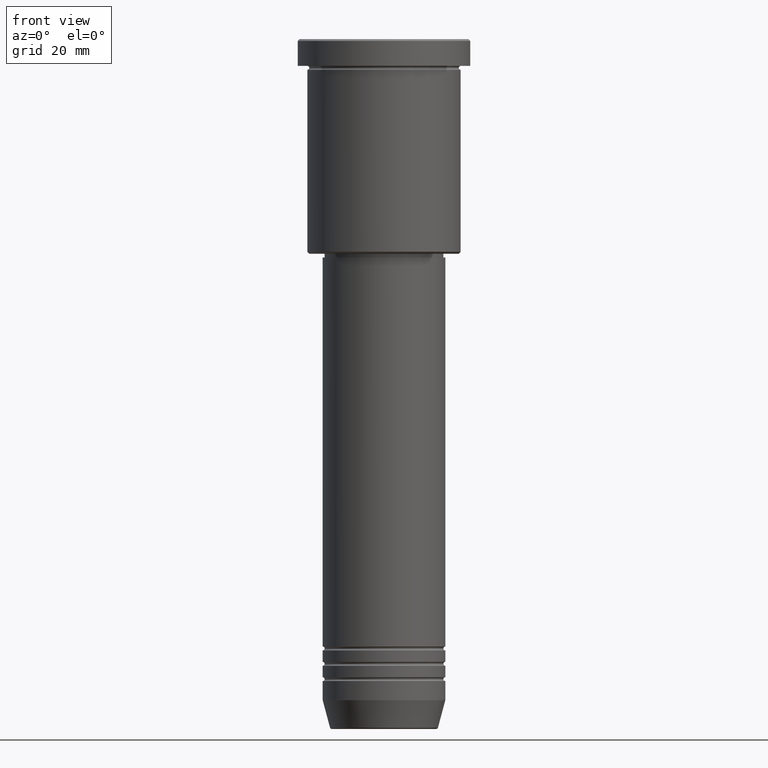
[diagram: clean part render]
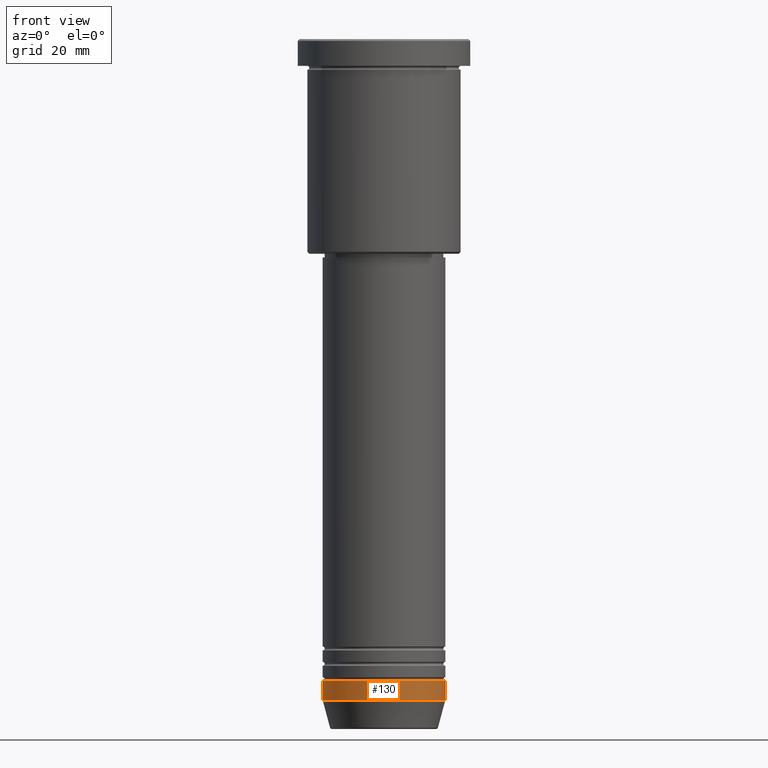
[diagram: same view with one face highlighted and labeled with its STEP entity id]
A machine part, front view. The second image highlights one B-rep face of the part: STEP entity #130.
In plain terms, the highlighted cylindrical surface (partial cylindrical patch) has radius 16 mm, axis along (-0, -0, 1).
Its self-contained STEP definition (entity closure, byte-faithful):
#4 = EDGE_CURVE ( 'NONE', #770, #1050, #547, .T. ) ;
#31 = EDGE_CURVE ( 'NONE', #1050, #184, #910, .T. ) ;
#70 = CARTESIAN_POINT ( 'NONE',  ( 16.00000000000000000, 0.000000000000000000, -172.5000000000000284 ) ) ;
#88 = EDGE_LOOP ( 'NONE', ( #476, #1158, #291, #843 ) ) ;
#130 = ADVANCED_FACE ( 'NONE', ( #567 ), #638, .T. ) ;
#184 = VERTEX_POINT ( 'NONE', #773 ) ;
#187 = CARTESIAN_POINT ( 'NONE',  ( 0.000000000000000000, 0.000000000000000000, -172.5000000000000284 ) ) ;
#198 = EDGE_CURVE ( 'NONE', #770, #546, #1152, .T. ) ;
#201 = CARTESIAN_POINT ( 'NONE',  ( 0.000000000000000000, 0.000000000000000000, -167.5000000000000000 ) ) ;
#215 = VECTOR ( 'NONE', #972, 1000.000000000000000 ) ;
#262 = DIRECTION ( 'NONE',  ( 1.000000000000000000, 0.000000000000000000, 0.000000000000000000 ) ) ;
#291 = ORIENTED_EDGE ( 'NONE', *, *, #31, .T. ) ;
#409 = DIRECTION ( 'NONE',  ( -0.000000000000000000, -0.000000000000000000, 1.000000000000000000 ) ) ;
#454 = VECTOR ( 'NONE', #1100, 1000.000000000000000 ) ;
#476 = ORIENTED_EDGE ( 'NONE', *, *, #198, .F. ) ;
#507 = AXIS2_PLACEMENT_3D ( 'NONE', #1009, #847, #930 ) ;
#546 = VERTEX_POINT ( 'NONE', #806 ) ;
#547 = CIRCLE ( 'NONE', #740, 16.00000000000000000 ) ;
#567 = FACE_OUTER_BOUND ( 'NONE', #88, .T. ) ;
#614 = DIRECTION ( 'NONE',  ( -0.000000000000000000, -0.000000000000000000, 1.000000000000000000 ) ) ;
#638 = CYLINDRICAL_SURFACE ( 'NONE', #507, 16.00000000000000000 ) ;
#670 = CARTESIAN_POINT ( 'NONE',  ( -16.00000000000000000, 1.959434878635765131E-15, -172.5000000000000284 ) ) ;
#696 = EDGE_CURVE ( 'NONE', #546, #184, #1146, .T. ) ;
#697 = CARTESIAN_POINT ( 'NONE',  ( -16.00000000000000000, 1.959434878635765131E-15, 0.000000000000000000 ) ) ;
#740 = AXIS2_PLACEMENT_3D ( 'NONE', #187, #614, #262 ) ;
#770 = VERTEX_POINT ( 'NONE', #670 ) ;
#773 = CARTESIAN_POINT ( 'NONE',  ( 16.00000000000000000, 0.000000000000000000, -167.5000000000000000 ) ) ;
#806 = CARTESIAN_POINT ( 'NONE',  ( -16.00000000000000000, 1.959434878635765131E-15, -167.5000000000000000 ) ) ;
#843 = ORIENTED_EDGE ( 'NONE', *, *, #696, .F. ) ;
#847 = DIRECTION ( 'NONE',  ( -0.000000000000000000, -0.000000000000000000, 1.000000000000000000 ) ) ;
#910 = LINE ( 'NONE', #917, #454 ) ;
#917 = CARTESIAN_POINT ( 'NONE',  ( 16.00000000000000000, 0.000000000000000000, 0.000000000000000000 ) ) ;
#930 = DIRECTION ( 'NONE',  ( 1.000000000000000000, 0.000000000000000000, 0.000000000000000000 ) ) ;
#951 = DIRECTION ( 'NONE',  ( 1.000000000000000000, 0.000000000000000000, 0.000000000000000000 ) ) ;
#972 = DIRECTION ( 'NONE',  ( -0.000000000000000000, -0.000000000000000000, 1.000000000000000000 ) ) ;
#1009 = CARTESIAN_POINT ( 'NONE',  ( 0.000000000000000000, 0.000000000000000000, 0.000000000000000000 ) ) ;
#1027 = AXIS2_PLACEMENT_3D ( 'NONE', #201, #409, #951 ) ;
#1050 = VERTEX_POINT ( 'NONE', #70 ) ;
#1100 = DIRECTION ( 'NONE',  ( -0.000000000000000000, -0.000000000000000000, 1.000000000000000000 ) ) ;
#1146 = CIRCLE ( 'NONE', #1027, 16.00000000000000000 ) ;
#1152 = LINE ( 'NONE', #697, #215 ) ;
#1158 = ORIENTED_EDGE ( 'NONE', *, *, #4, .T. ) ;